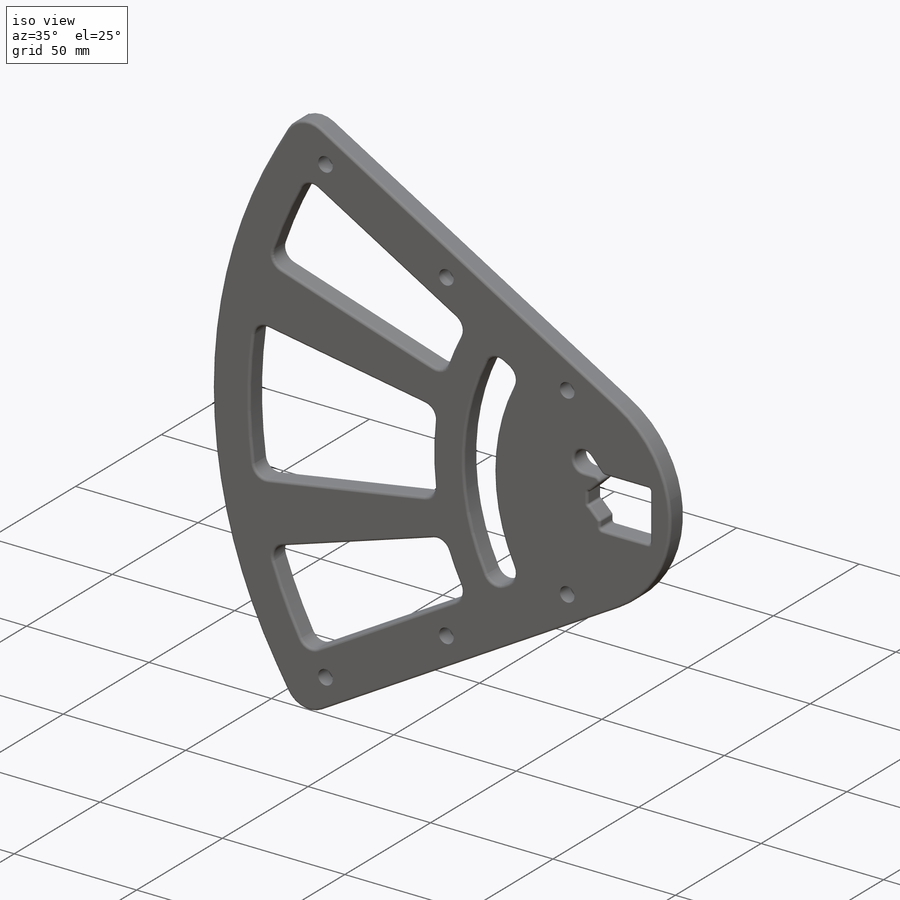
[diagram: iso view]
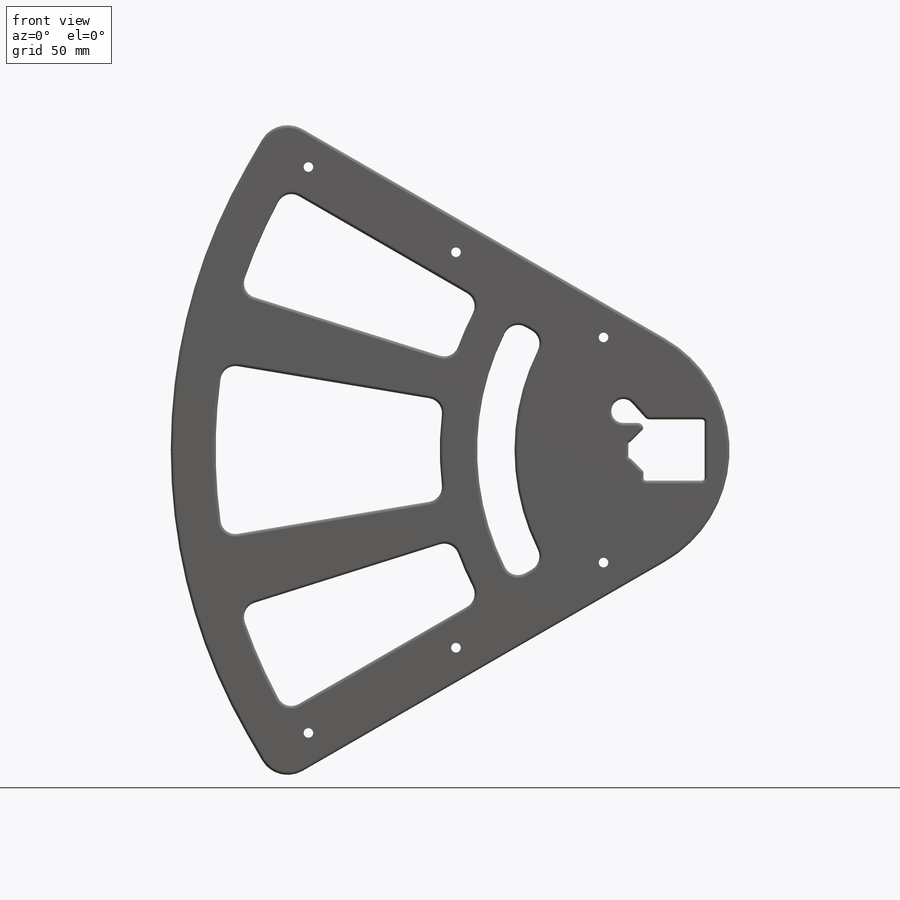
[diagram: front view]
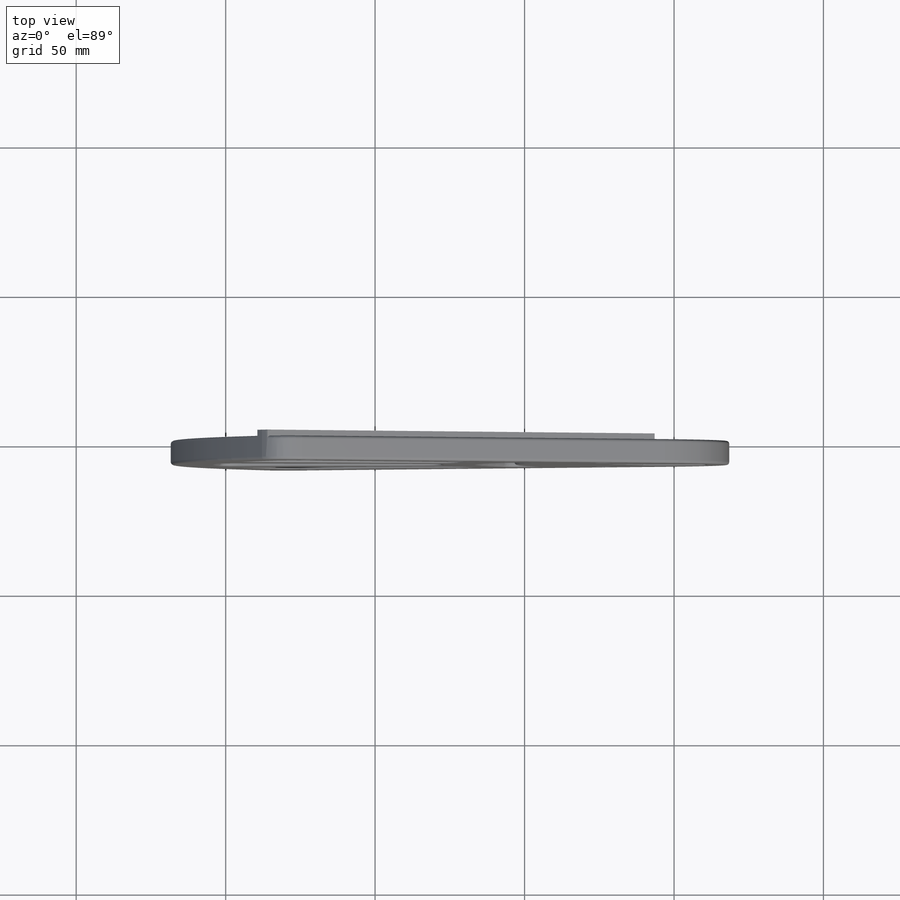
[diagram: top view]
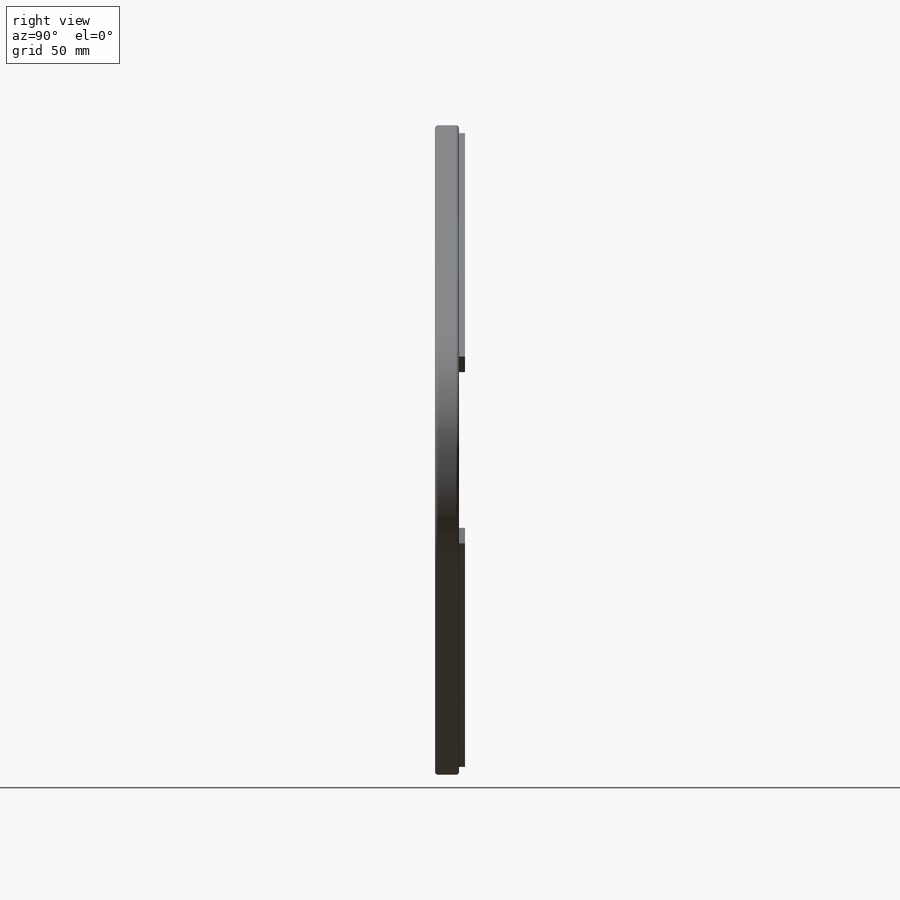
[diagram: right view]
SOLIDWORKS PART (.sldprt)
format: sldprt  version: not decoded by parser v0  size: 734,208 bytes
history: native  units: mm
features: sketch x5, extrude x2, cut_extrude x2, material x1, fillet x1 (+13 scaffold rows collapsed)
feature tree (24):
  scaffold x13  (default folders/planes/origin — collapsed)
  material  "Material <not specified>"
  sketch  "Sketch1"  dims[D1=300.0mm]
  sketch  "Sketch3"  dims[c1.D2=2.0mm c1.D3=2.0mm c1.D5=~176.262461mm c1.D1=100.0mm c2.D2=90.0mm c2.D8=2.0mm c2.D9=5.0mm c2.D3=10.0mm c2.D10=1.0mm c2.D4=150.0mm c2.D5=15.0mm c2.D6=~72.322026mm c3.D6=8.0deg c3.D7=~64.951905mm c4.D7=60.0deg c5.D7=~64.951905mm c6.D7=12.5deg c6.D1=12.5mm c6.D2=12.5mm c6.D3=~1.175893mm c7.D3=45.0deg c7.D1=6.0mm]
  extrude  "Boss-Extrude1"  Depth=8mm
  sketch  "Sketch6"  dims[D1=~10.000006mm D2=18.0mm D3=18.0mm]
  cut_extrude  "Cut-Extrude1"  [1 undecoded]
  sketch  "Sketch7"  dims[D1=6.0mm]
  cut_extrude  "Cut-Extrude2"  Depth=2mm
  sketch  "Sketch8"  dims[D1=6.0mm]
  extrude  "Boss-Extrude3"  Depth=2mm
  fillet  "Fillet3"  Radius=1mm
decode coverage: 9 of 10 modeling features carry decoded parameters
note: ~ marks probable driven/reference dimensions
note: 1 parameter value undecoded
note: suppression state not decoded; provenance and decode notes live in map.json
